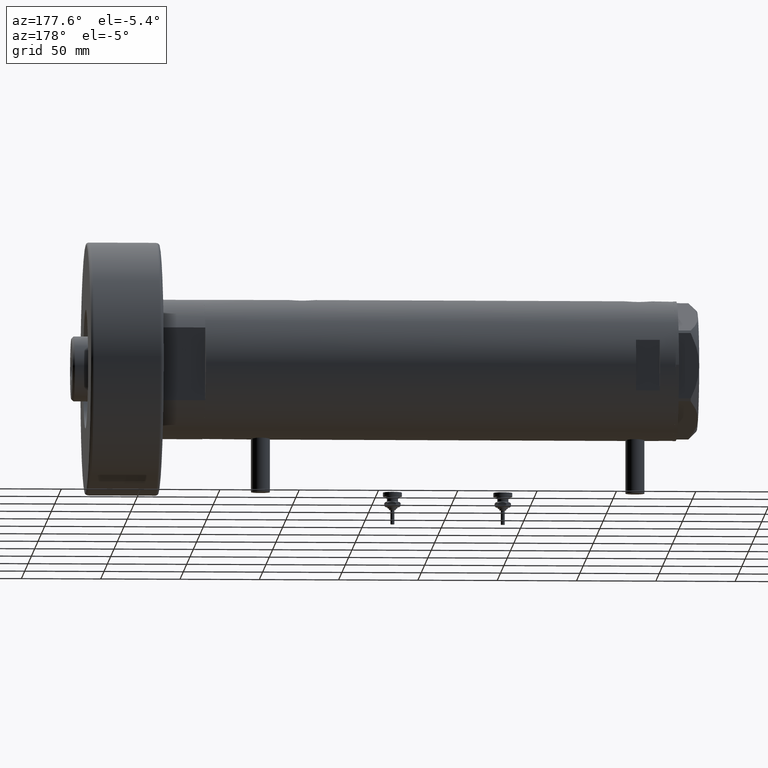
[diagram: clean part render]
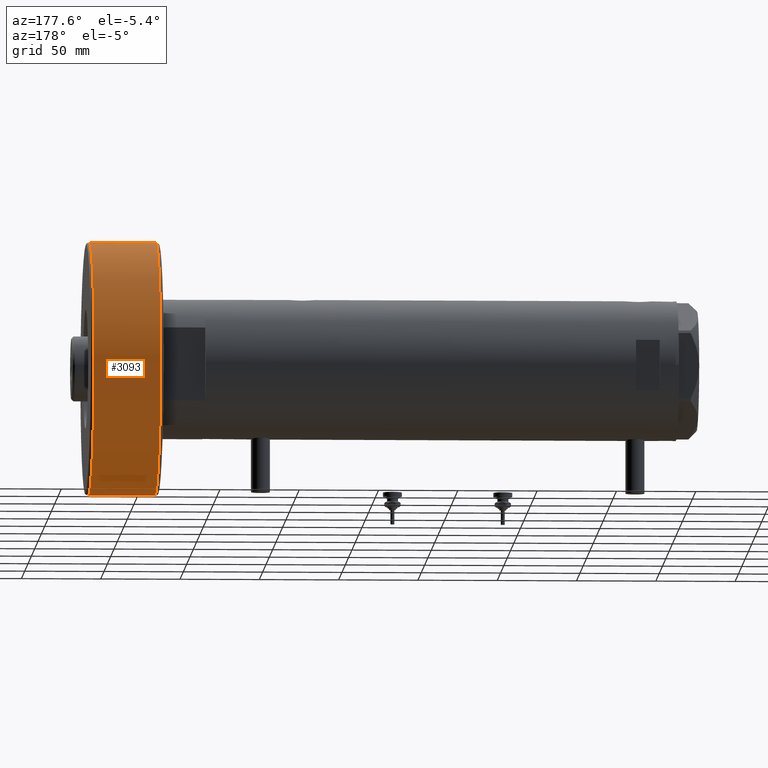
[diagram: same view with one face highlighted and labeled with its STEP entity id]
A machine part, auxiliary view. The second image highlights one B-rep face of the part: STEP entity #3093.
In plain terms, the highlighted cylindrical surface (partial cylindrical patch) has radius 80 mm, axis along (-1, -0, 0).
Its self-contained STEP definition (entity closure, byte-faithful):
#34 = CIRCLE ( 'NONE', #5601, 80.00000000000000000 ) ;
#92 = DIRECTION ( 'NONE',  ( -0.000000000000000000, -0.000000000000000000, -1.000000000000000000 ) ) ;
#106 = CARTESIAN_POINT ( 'NONE',  ( -80.00000000000000000, 0.000000000000000000, 44.00000000000000000 ) ) ;
#312 = ORIENTED_EDGE ( 'NONE', *, *, #1157, .F. ) ;
#400 = VERTEX_POINT ( 'NONE', #106 ) ;
#455 = ORIENTED_EDGE ( 'NONE', *, *, #5102, .T. ) ;
#567 = LINE ( 'NONE', #4514, #1433 ) ;
#580 = CYLINDRICAL_SURFACE ( 'NONE', #4263, 80.00000000000000000 ) ;
#933 = CARTESIAN_POINT ( 'NONE',  ( 0.000000000000000000, 0.000000000000000000, 44.00000000000000000 ) ) ;
#938 = LINE ( 'NONE', #2881, #2902 ) ;
#1157 = EDGE_CURVE ( 'NONE', #400, #1634, #938, .T. ) ;
#1326 = CARTESIAN_POINT ( 'NONE',  ( 80.00000000000000000, 9.797174393178826052E-15, 44.00000000000000000 ) ) ;
#1433 = VECTOR ( 'NONE', #92, 1000.000000000000000 ) ;
#1634 = VERTEX_POINT ( 'NONE', #5367 ) ;
#1883 = CIRCLE ( 'NONE', #3935, 80.00000000000000000 ) ;
#1930 = DIRECTION ( 'NONE',  ( 1.000000000000000000, 0.000000000000000000, 0.000000000000000000 ) ) ;
#2186 = EDGE_CURVE ( 'NONE', #3467, #1634, #1883, .T. ) ;
#2187 = EDGE_CURVE ( 'NONE', #400, #4763, #34, .T. ) ;
#2583 = CARTESIAN_POINT ( 'NONE',  ( 0.000000000000000000, 0.000000000000000000, 46.00000000000000000 ) ) ;
#2604 = EDGE_LOOP ( 'NONE', ( #5409, #455, #2829, #312 ) ) ;
#2829 = ORIENTED_EDGE ( 'NONE', *, *, #2186, .T. ) ;
#2881 = CARTESIAN_POINT ( 'NONE',  ( -80.00000000000000000, 0.000000000000000000, 46.00000000000000000 ) ) ;
#2902 = VECTOR ( 'NONE', #5001, 1000.000000000000000 ) ;
#3093 = ADVANCED_FACE ( 'NONE', ( #5377 ), #580, .T. ) ;
#3346 = CARTESIAN_POINT ( 'NONE',  ( 80.00000000000000000, 9.797174393178826052E-15, 2.000000000000001776 ) ) ;
#3467 = VERTEX_POINT ( 'NONE', #3346 ) ;
#3935 = AXIS2_PLACEMENT_3D ( 'NONE', #6298, #5294, #1930 ) ;
#4263 = AXIS2_PLACEMENT_3D ( 'NONE', #2583, #5561, #4528 ) ;
#4514 = CARTESIAN_POINT ( 'NONE',  ( 80.00000000000000000, 9.797174393178826052E-15, 46.00000000000000000 ) ) ;
#4528 = DIRECTION ( 'NONE',  ( -1.000000000000000000, 0.000000000000000000, 0.000000000000000000 ) ) ;
#4763 = VERTEX_POINT ( 'NONE', #1326 ) ;
#4871 = DIRECTION ( 'NONE',  ( 1.000000000000000000, 0.000000000000000000, 0.000000000000000000 ) ) ;
#5001 = DIRECTION ( 'NONE',  ( -0.000000000000000000, -0.000000000000000000, -1.000000000000000000 ) ) ;
#5102 = EDGE_CURVE ( 'NONE', #4763, #3467, #567, .T. ) ;
#5294 = DIRECTION ( 'NONE',  ( 0.000000000000000000, 0.000000000000000000, 1.000000000000000000 ) ) ;
#5367 = CARTESIAN_POINT ( 'NONE',  ( -80.00000000000000000, 0.000000000000000000, 2.000000000000001776 ) ) ;
#5377 = FACE_OUTER_BOUND ( 'NONE', #2604, .T. ) ;
#5409 = ORIENTED_EDGE ( 'NONE', *, *, #2187, .T. ) ;
#5561 = DIRECTION ( 'NONE',  ( -0.000000000000000000, -0.000000000000000000, -1.000000000000000000 ) ) ;
#5601 = AXIS2_PLACEMENT_3D ( 'NONE', #933, #5809, #4871 ) ;
#5809 = DIRECTION ( 'NONE',  ( -0.000000000000000000, -0.000000000000000000, -1.000000000000000000 ) ) ;
#6298 = CARTESIAN_POINT ( 'NONE',  ( 0.000000000000000000, 0.000000000000000000, 2.000000000000001776 ) ) ;